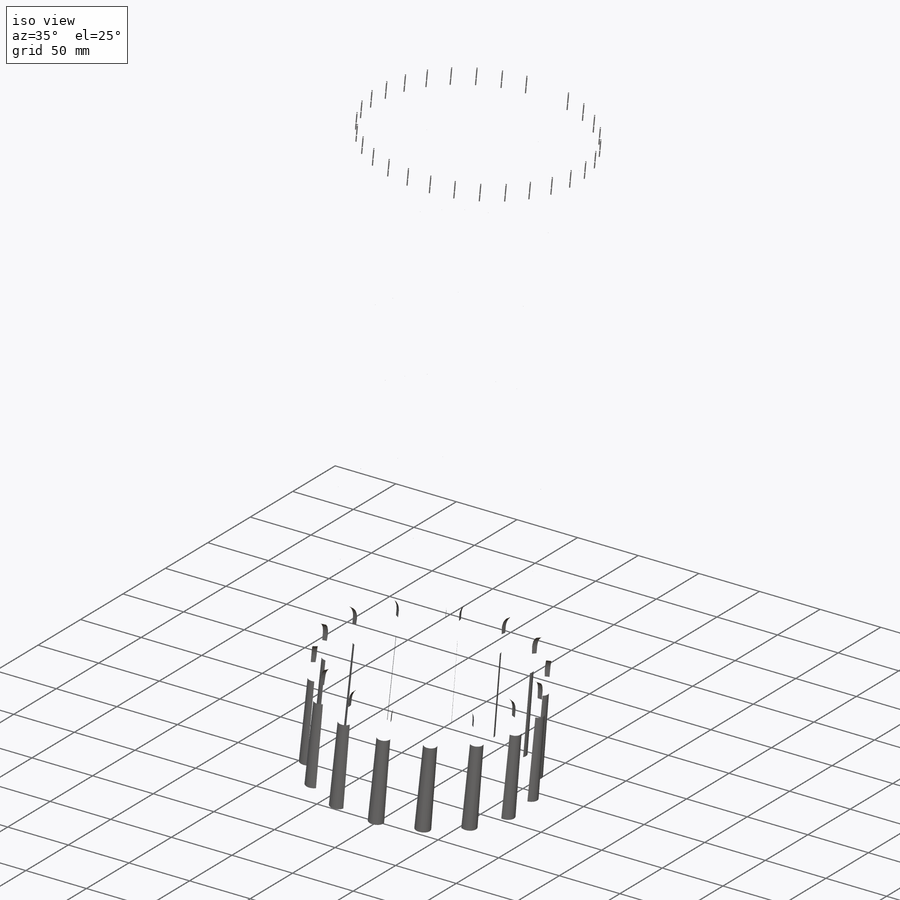
[diagram: iso view]
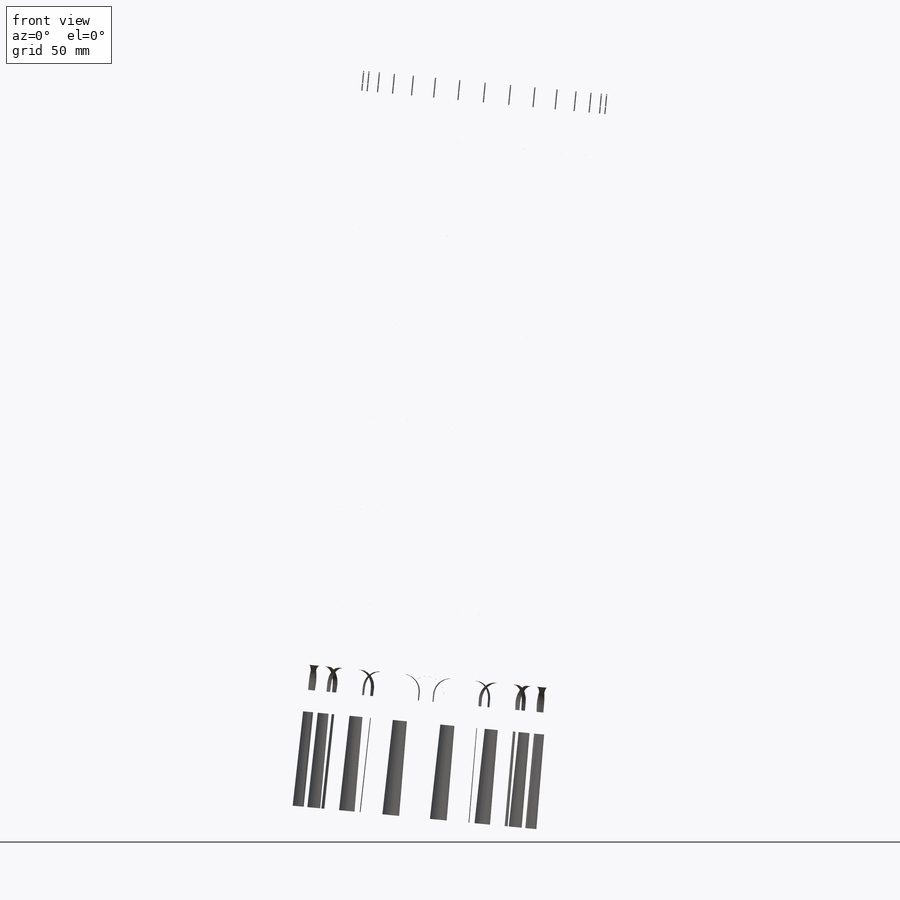
[diagram: front view]
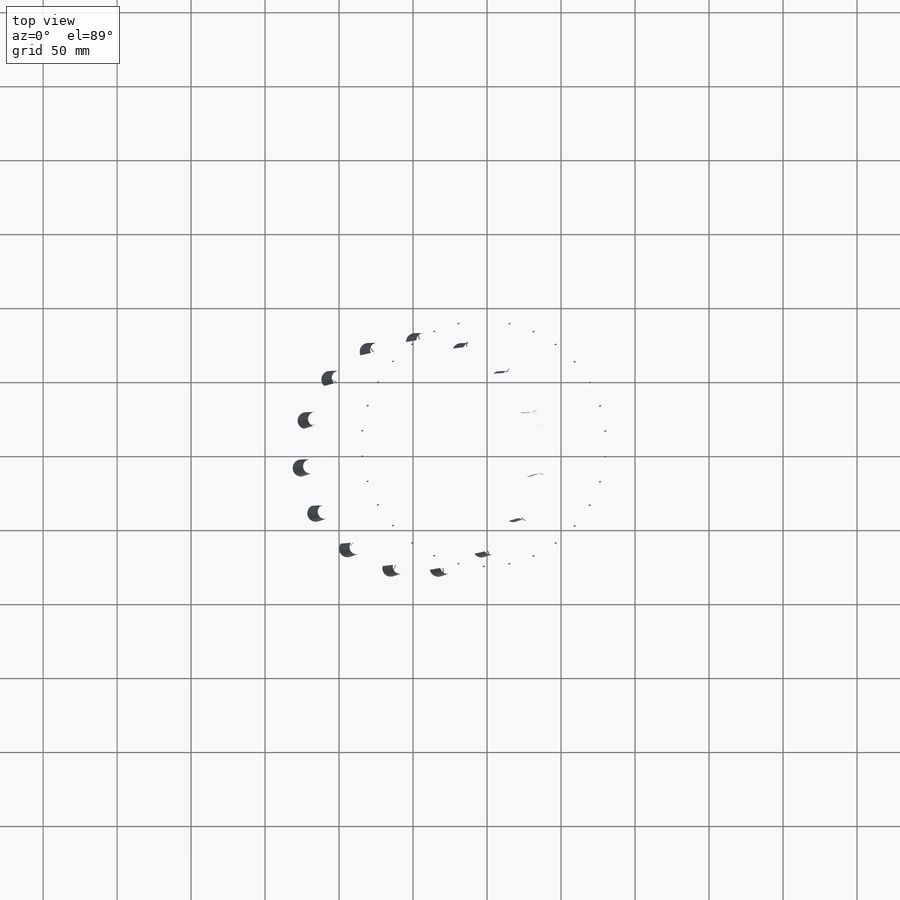
[diagram: top view]
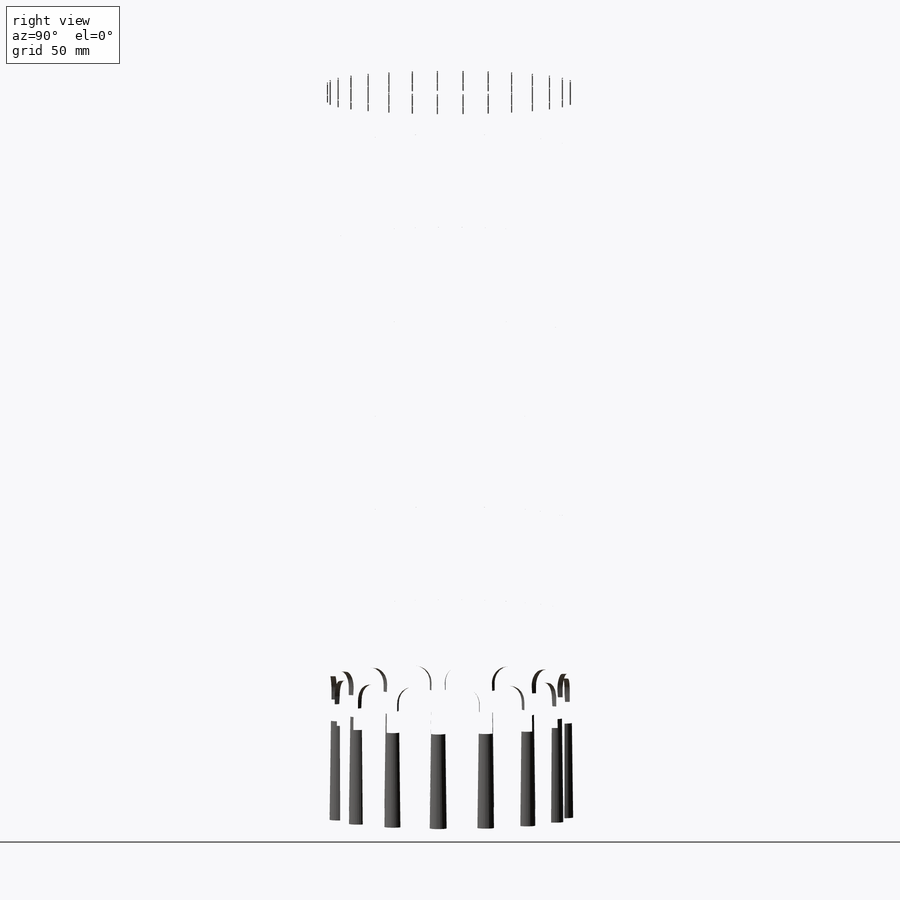
[diagram: right view]
SOLIDWORKS PART (.sldprt)
format: sldprt  version: not decoded by parser v0  size: 53,489,152 bytes
history: native  units: mm
features: sketch x67, extrude x30, pattern_circular x24, plane x16, cut_extrude x14, revolve x9, pattern_linear x5, fillet x5, material x1, sweep x1 (+16 scaffold rows collapsed)
feature tree (188):
  scaffold x16  (default folders/planes/origin — collapsed)
  material  "Material <not specified>"
  sketch  "Sketch1"
  sketch  "Sketch2"  dims[c1.D1=~81.494585mm c2.D1=5.5deg]
  plane  "Plane2"
  sketch  "Sketch3"  dims[D1=154.84mm]
  extrude  "Boss-Extrude4"  Depth=116.2mm
  sketch  "Sketch8"  dims[D2=8.5mm D1=15.0]
  extrude  "Boss-Extrude6"  [1 undecoded]
  sketch  "Sketch9"  dims[c1.D1=19.0mm c1.D2=40.0mm c2.D1=22.0mm c2.D3=~23.477259mm c3.D1=22.0mm]
  extrude  "Boss-Extrude7"  Depth=100mm
  pattern_circular  "CirPattern4"  Count=15 Angle=360deg
  sketch  "Sketch10"  dims[D1=166.0mm]
  cut_extrude  "Cut-Extrude1"  Depth=40mm
  sketch  "Sketch11"  dims[D1=1.5mm D2=14.0mm]
  extrude  "Boss-Extrude8"  Depth=3mm
  pattern_circular  "CirPattern5"  Count=15 Angle=360deg
  sketch  "Sketch12"  dims[D1=1.0mm D2=5.0mm D3=7.0mm]
  revolve  "Revolve1"  Angle=360deg
  sketch  "Sketch13"  dims[D1=134.0mm]
  extrude  "Boss-Extrude9"  Depth=58.2mm
  sketch  "Sketch16"
  extrude  "Boss-Extrude11"  Depth=5mm
  sketch  "Sketch15"  dims[D1=5.0mm D3=78.0mm D2=30.0]
  extrude  "Boss-Extrude14"  [1 undecoded]
  sketch  "Sketch19"
  plane  "Plane3"
  sketch  "Sketch17"  dims[D1=1.0mm D2=7.0mm]
  sketch  "Sketch21"  dims[D1=16.0mm D2=3.0mm D3=3.0mm]
  extrude  "Boss-Extrude16"  Depth=90mm
  pattern_circular  "CirPattern9"  Count=30 Angle=360deg
  sketch  "Sketch24"
  cut_extrude  "Cut-Extrude5"  [1 undecoded]
  pattern_circular  "CirPattern8"  Count=30 Angle=360deg
  sketch  "Sketch25"  dims[D1=166.0mm]
  cut_extrude  "Cut-Extrude6"  Depth=20mm
  plane  "Plane4"
  sketch  "Sketch26"  dims[D1=0.4mm D2=~0.50583mm]
  cut_extrude  "Cut-Extrude9"  Depth=2.2mm
  pattern_circular  "CirPattern10"  Count=30 Angle=360deg
  revolve  "Revolve3"  Angle=360deg
  sketch  "Sketch29"  dims[D1=8.0mm D2=0.4mm]
  extrude  "Boss-Extrude17"  Depth=3.5mm
  sketch  "Sketch30"  dims[D1=7.0mm]
  extrude  "Boss-Extrude18"  Depth=2mm
  plane  "Plane6"
  sketch  "Sketch31"  dims[D1=5.5mm]
  sketch  "Sketch32"
  revolve  "Revolve4"  Angle=360deg
  sketch  "Sketch33"  dims[D1=1.5mm D2=1.5mm]
  cut_extrude  "Cut-Extrude10"  Depth=4.5mm
  cut_extrude  "Cut-Extrude11"  [1 undecoded]
  sketch  "Sketch33<3>"  dims[D1=5.5mm D19=80.0mm]
  cut_extrude  "Cut-Extrude12"  [1 undecoded]
  sketch  "Sketch33<4>"  dims[D1=6.5mm D19=80.0mm]
  plane  "Plane7"
  sketch  "Sketch34"
  revolve  "Revolve5"  Angle=360deg
  pattern_circular  "CirPattern11"  Count=15 Angle=360deg
  pattern_circular  "CirPattern13"  Count=30 Angle=360deg
  extrude  "Boss-Extrude19"  [1 undecoded]
  sketch  "Sketch15<3>"  dims[D1=379.2mm]
  pattern_linear  "LPattern1"  Count1=2 Count2=1 Spacing1=63.2mm Spacing2=10mm
  pattern_linear  "LPattern4"  Count1=5 Count2=1 Spacing1=63.2mm Spacing2=10mm
  sketch  "Sketch36"  dims[c1.D1=~8.270032mm c1.D2=~8.270032mm c1.D3=~8.270032mm c1.D4=~8.270032mm c1.D5=~8.270032mm c2.D1=0.4mm c2.D2=3.0mm c2.D3=~16.463082mm]
  cut_extrude  "Cut-Extrude13"  Depth=2.2mm
  pattern_circular  "CirPattern14"  Count=30 Angle=360deg
  sketch  "Sketch37"  dims[D1=124.0mm D2=95.0mm D3=8.5mm]
  extrude  "Boss-Extrude20"  Depth=100mm
  sketch  "Sketch38"  dims[D1=5.0mm D2=18.0]
  extrude  "Boss-Extrude21"  [1 undecoded]
  plane  "Plane8"
  sketch  "Sketch39"
  extrude  "Boss-Extrude22"  Depth=20mm
  pattern_circular  "CirPattern15"  Count=18 Angle=360deg
  sketch  "Sketch40"  dims[D1=134.0mm]
  cut_extrude  "Cut-Extrude14"  Depth=30mm
  sketch  "Sketch44"
  cut_extrude  "Cut-Extrude15"  Depth=2mm
  pattern_circular  "CirPattern16"  Count=18 Angle=360deg
  sketch  "Sketch46"  dims[D1=18.0]
  extrude  "Boss-Extrude23"  Depth=2.5mm
  sketch  "Sketch47"  dims[D1=0.8mm D2=0.8mm D3=18.0]
  extrude  "Boss-Extrude24"  Depth=1.5mm
  sketch  "Sketch48"
  cut_extrude  "Cut-Extrude16"  Depth=31.5mm
  pattern_circular  "CirPattern17"  Count=6 Angle=360deg
  plane  "Plane12"
  sketch  "Sketch49"
  cut_extrude  "Cut-Extrude17"  Depth=31.5mm
  sketch  "Sketch50"
  plane  "Plane13"
  sketch  "Sketch51"
  extrude  "Boss-Extrude25"  Depth=10mm
  sketch  "Sketch52"
  revolve  "Revolve12"  Angle=360deg
  sketch  "Sketch53"
  plane  "Plane14"
  sketch  "Sketch54"
  extrude  "Boss-Extrude26"  Depth=4mm
  sketch  "Sketch55"
  revolve  "Revolve13"  Angle=360deg
  pattern_circular  "CirPattern31"  Count=6 Angle=360deg
  pattern_circular  "CirPattern32"  Count=6 Angle=360deg
  pattern_circular  "CirPattern33"  Count=6 Angle=360deg
  sketch  "Sketch56"  dims[D2=1.5mm D1=1.5mm]
  extrude  "Boss-Extrude28"  Depth=2.6mm
  plane  "Plane15"  Offset=5mm
  sketch  "Sketch57"
  sketch  "Sketch58"
  pattern_circular  "CirPattern19"  Count=18 Angle=360deg
  fillet  "Fillet1"  Radius=0.6mm
  pattern_circular  "CirPattern21"  Count=6 Angle=360deg
  sketch  "Sketch59"  dims[D1=144.0mm]
  extrude  "Boss-Extrude29"  Depth=2.5mm
  sketch  "Sketch61"  dims[D1=1.0mm D2=1.0mm]
  cut_extrude  "Cut-Extrude18"  Depth=25mm
  pattern_circular  "CirPattern22"  Count=200 Angle=360deg
  plane  "Plane16"
  sketch  "Sketch62"
  extrude  "Boss-Extrude30"  Depth=2mm
  extrude  "Boss-Extrude31"  [1 undecoded]
  sketch  "Sketch62<3>"  dims[D1=3.0mm]
  sketch  "Sketch63"
  extrude  "Boss-Extrude32"  [1 undecoded]
  pattern_circular  "CirPattern23"  Count=100 Angle=360deg
  plane  "Plane17"
  sketch  "Sketch66"
  extrude  "Boss-Extrude34"  Depth=2mm
  pattern_circular  "CirPattern24"  Count=18 Angle=360deg
  fillet  "Fillet7"  Radius=8mm
  fillet  "Fillet8"  Radius=2mm
  extrude  "Boss-Extrude35"  [1 undecoded]
  sketch  "Sketch46<2>"  dims[D19=72.0mm]
  sketch  "Sketch67"  dims[D1=~3.110476mm D2=69.0mm D3=30.0]
  extrude  "Boss-Extrude36"  Depth=14mm
  sketch  "Sketch68"  dims[D1=0.7mm]
  revolve  "Revolve14"  Angle=360deg
  plane  "Plane18"  Offset=5mm
  sketch  "Sketch69"
  plane  "Plane20"
  sketch  "Sketch72"  dims[D1=0.8mm D2=30.0]
  extrude  "Boss-Extrude37"  Depth=14mm
  sketch  "Sketch73"  dims[D1=0.7mm]
  revolve  "Revolve15"  Angle=360deg
  pattern_circular  "CirPattern25"  Count=30 Angle=360deg
  sketch  "Sketch71"  dims[D1=0.7mm D2=0.7mm D4=0.7mm D5=0.7mm D3=7.5mm D6=5.0mm D7=7.5mm]
  sweep  "Sweep2"
  sketch  "Sketch76"  dims[D1=1.0mm]
  revolve  "Revolve16"  Angle=360deg
  pattern_circular  "CirPattern26"  Count=200 Angle=360deg
  sketch  "Sketch77"  dims[D1=~5.398997mm D2=5.399mm]
  plane  "Plane21"
  sketch  "Sketch78"
  fillet  "Fillet9"  Radius=1.2mm
  pattern_circular  "CirPattern28"  Count=30 Angle=360deg
  pattern_linear  "LPattern6"  Count1=6 Count2=1 Spacing1=63.2mm Spacing2=50mm
  sketch  "Sketch79"  dims[D1=20.0mm D2=2.0mm D3=15.0]
  extrude  "Boss-Extrude38"  Depth=10mm
  sketch  "Sketch80"  dims[D1=275.0mm D2=185.0mm]
  extrude  "Boss-Extrude39"  Depth=20mm
  sketch  "Sketch83"  dims[D1=320.0mm]
  extrude  "Boss-Extrude40"  Depth=20mm
  pattern_linear  "LPattern7"  Count1=6 Count2=1 Spacing1=63.2mm Spacing2=10mm
  fillet  "Fillet10"  Radius=1.2mm
  sketch  "Sketch84"
  plane  "Plane22"
  sketch  "Sketch85"
  pattern_circular  "CirPattern29"  Count=15 Angle=360deg
  pattern_linear  "LPattern8"  Count1=2 Count2=1 Spacing1=63.2mm Spacing2=10mm
  sketch  "Sketch86"  dims[D1=15.0mm]
  cut_extrude  "Cut-Extrude19"  Depth=2mm
  pattern_circular  "CirPattern30"  Count=15 Angle=360deg
decode coverage: 119 of 155 modeling features carry decoded parameters
note: ~ marks probable driven/reference dimensions
note: 10 parameter values undecoded
summary: no parameter record found for 10 features
note: suppression state not decoded; provenance and decode notes live in map.json
